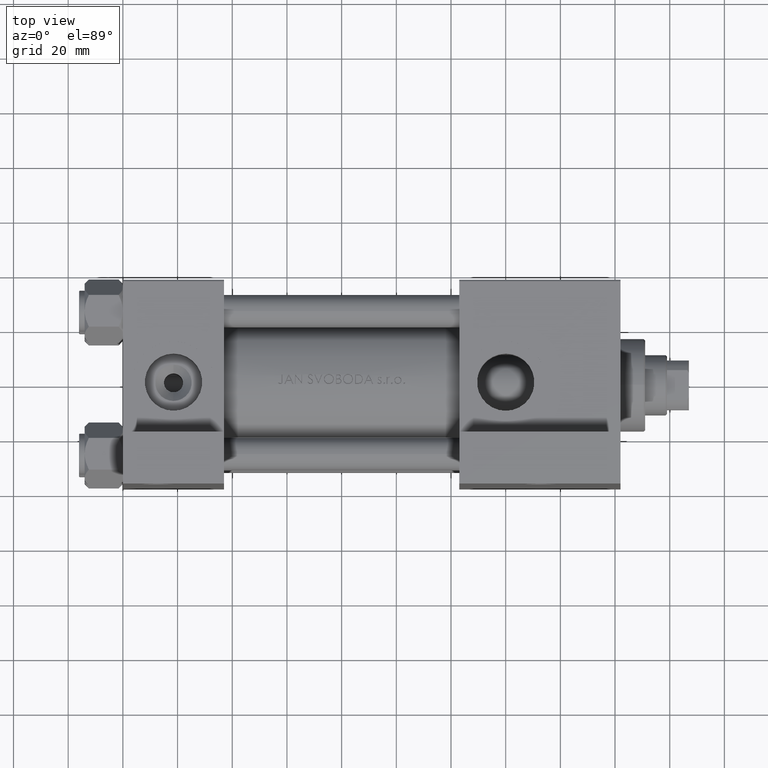
[diagram: clean part render]
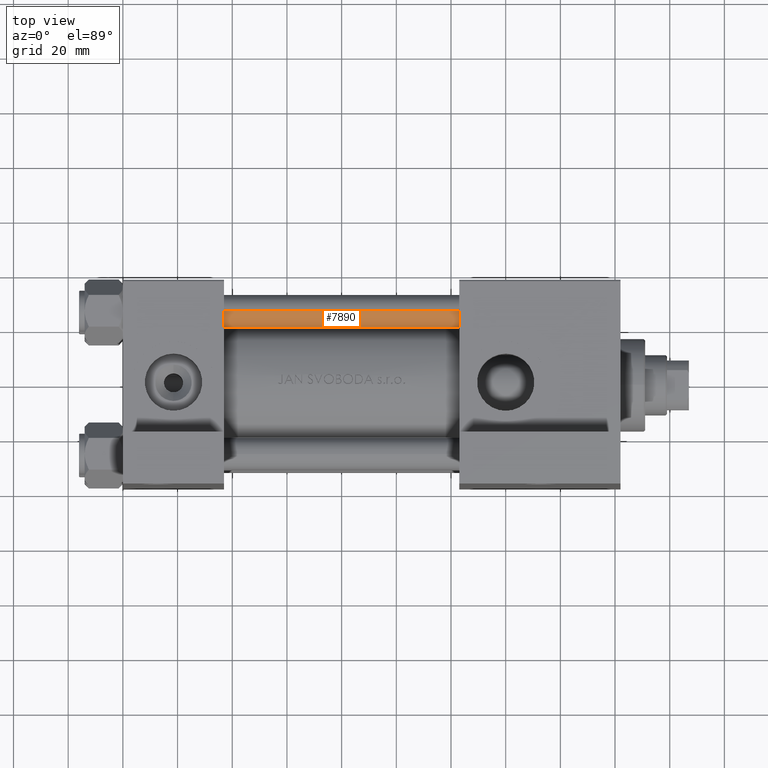
[diagram: same view with one face highlighted and labeled with its STEP entity id]
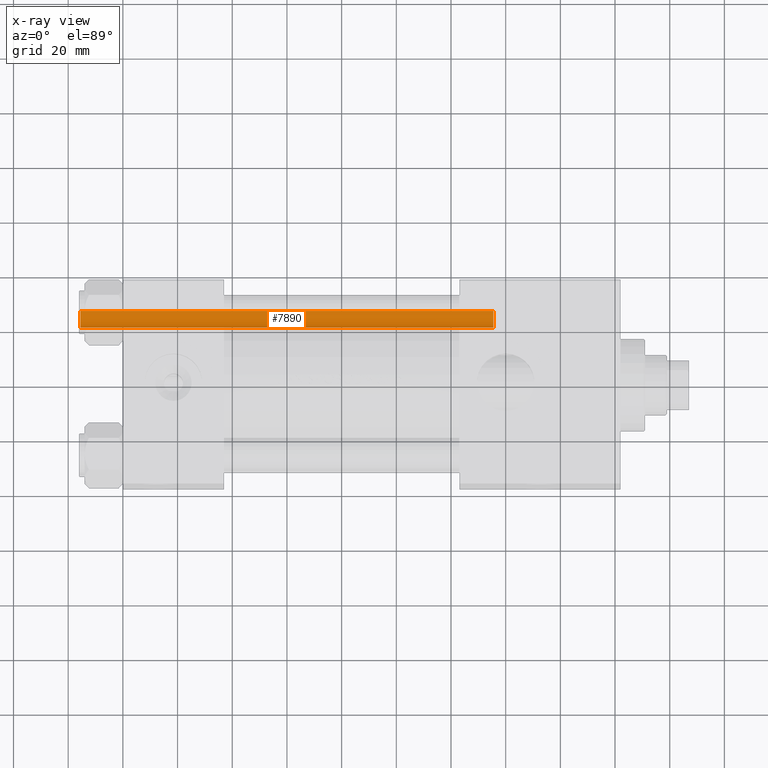
[diagram: x-ray of the same camera — body ghosted, the highlighted face saturated]
A machine part, top view. The second image highlights one B-rep face of the part: STEP entity #7890.
The next image is the same camera in x-ray: the body ghosted, the highlighted face saturated — about 0% of this face is hidden behind the body in this view.
In plain terms, the highlighted cylindrical surface (edge-blend (fillet) strip) has radius 6 mm, axis along (-1, -0, -0).
Its self-contained STEP definition (entity closure, byte-faithful):
#1587 = CARTESIAN_POINT ( 'NONE',  ( -6.000000000000000888, 0.000000000000000000, 152.0000000000000000 ) ) ;
#1719 = DIRECTION ( 'NONE',  ( -0.000000000000000000, -0.000000000000000000, 1.000000000000000000 ) ) ;
#4041 = EDGE_CURVE ( 'NONE', #48076, #46819, #14118, .T. ) ;
#4186 = DIRECTION ( 'NONE',  ( 0.000000000000000000, 0.000000000000000000, -1.000000000000000000 ) ) ;
#4328 = CYLINDRICAL_SURFACE ( 'NONE', #22418, 6.000000000000000888 ) ;
#4661 = DIRECTION ( 'NONE',  ( -0.000000000000000000, -0.000000000000000000, -1.000000000000000000 ) ) ;
#4822 = DIRECTION ( 'NONE',  ( -1.000000000000000000, 0.000000000000000000, 0.000000000000000000 ) ) ;
#4826 = LINE ( 'NONE', #1587, #20013 ) ;
#5454 = EDGE_LOOP ( 'NONE', ( #13945, #19835, #26607, #18088 ) ) ;
#7890 = ADVANCED_FACE ( 'NONE', ( #20264 ), #4328, .T. ) ;
#9211 = CARTESIAN_POINT ( 'NONE',  ( 0.000000000000000000, 0.000000000000000000, 0.5000000000000281997 ) ) ;
#13945 = ORIENTED_EDGE ( 'NONE', *, *, #34528, .F. ) ;
#14118 = CIRCLE ( 'NONE', #45911, 6.000000000000000888 ) ;
#15108 = CARTESIAN_POINT ( 'NONE',  ( -6.000000000000000888, 0.000000000000000000, 0.5000000000000281997 ) ) ;
#16912 = DIRECTION ( 'NONE',  ( 1.000000000000000000, 0.000000000000000000, 0.000000000000000000 ) ) ;
#18088 = ORIENTED_EDGE ( 'NONE', *, *, #34195, .T. ) ;
#19527 = CARTESIAN_POINT ( 'NONE',  ( 0.000000000000000000, 0.000000000000000000, 152.0000000000000000 ) ) ;
#19835 = ORIENTED_EDGE ( 'NONE', *, *, #4041, .T. ) ;
#20013 = VECTOR ( 'NONE', #47157, 1000.000000000000000 ) ;
#20264 = FACE_OUTER_BOUND ( 'NONE', #5454, .T. ) ;
#22418 = AXIS2_PLACEMENT_3D ( 'NONE', #19527, #42415, #4822 ) ;
#23407 = VECTOR ( 'NONE', #4661, 1000.000000000000000 ) ;
#26469 = EDGE_CURVE ( 'NONE', #46819, #48114, #4826, .T. ) ;
#26607 = ORIENTED_EDGE ( 'NONE', *, *, #26469, .T. ) ;
#27293 = CARTESIAN_POINT ( 'NONE',  ( 6.000000000000000888, 7.347880794884120722E-16, 152.0000000000000000 ) ) ;
#28208 = CIRCLE ( 'NONE', #36968, 6.000000000000000888 ) ;
#28676 = CARTESIAN_POINT ( 'NONE',  ( -6.000000000000000888, 0.000000000000000000, 151.5000000000000000 ) ) ;
#34071 = CARTESIAN_POINT ( 'NONE',  ( 0.000000000000000000, 0.000000000000000000, 151.5000000000000000 ) ) ;
#34195 = EDGE_CURVE ( 'NONE', #48114, #43537, #28208, .T. ) ;
#34528 = EDGE_CURVE ( 'NONE', #48076, #43537, #41760, .T. ) ;
#36968 = AXIS2_PLACEMENT_3D ( 'NONE', #9211, #1719, #16912 ) ;
#38000 = CARTESIAN_POINT ( 'NONE',  ( 6.000000000000000888, 7.347880794884120722E-16, 151.5000000000000000 ) ) ;
#41760 = LINE ( 'NONE', #27293, #23407 ) ;
#42415 = DIRECTION ( 'NONE',  ( -0.000000000000000000, -0.000000000000000000, -1.000000000000000000 ) ) ;
#43537 = VERTEX_POINT ( 'NONE', #49020 ) ;
#45911 = AXIS2_PLACEMENT_3D ( 'NONE', #34071, #4186, #49267 ) ;
#46819 = VERTEX_POINT ( 'NONE', #28676 ) ;
#47157 = DIRECTION ( 'NONE',  ( -0.000000000000000000, -0.000000000000000000, -1.000000000000000000 ) ) ;
#48076 = VERTEX_POINT ( 'NONE', #38000 ) ;
#48114 = VERTEX_POINT ( 'NONE', #15108 ) ;
#49020 = CARTESIAN_POINT ( 'NONE',  ( 6.000000000000000888, 7.347880794884120722E-16, 0.5000000000000281997 ) ) ;
#49267 = DIRECTION ( 'NONE',  ( 1.000000000000000000, 0.000000000000000000, 0.000000000000000000 ) ) ;